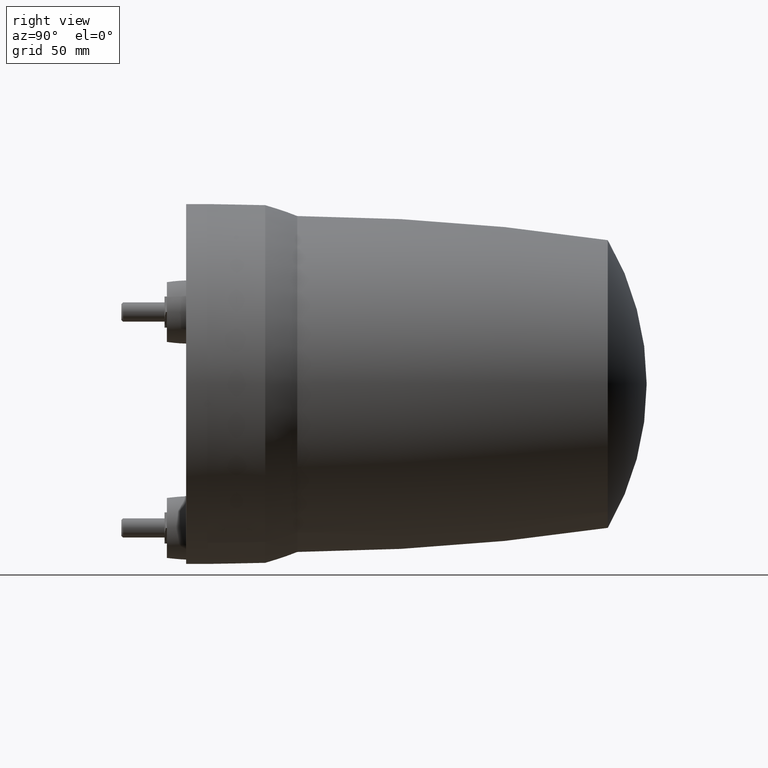
[diagram: clean part render]
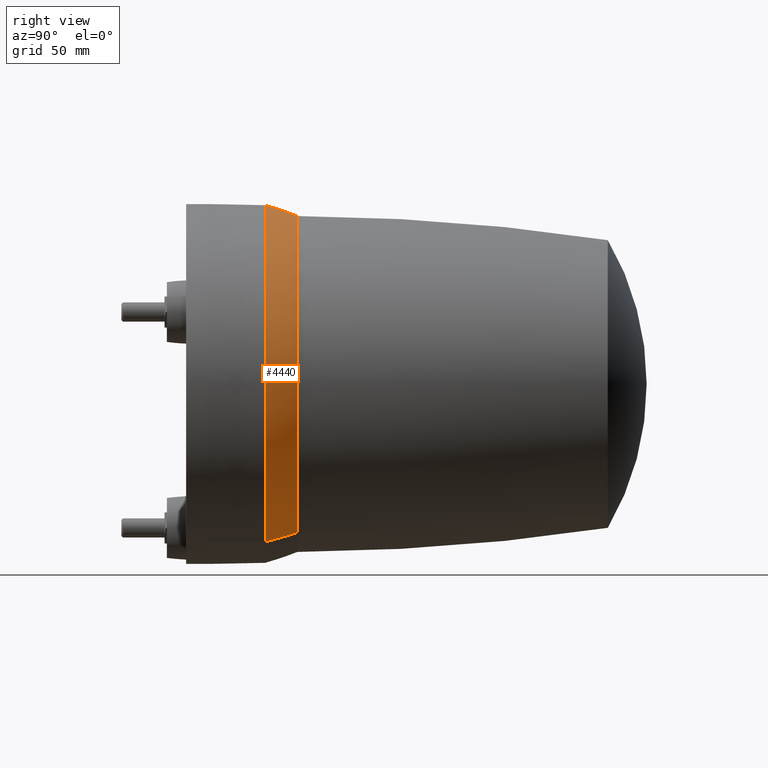
[diagram: same view with one face highlighted and labeled with its STEP entity id]
A machine part, right view. The second image highlights one B-rep face of the part: STEP entity #4440.
In plain terms, the highlighted toroidal blend (fillet) surface has major radius 212.318 mm and minor (blend) radius 300 mm.
Its self-contained STEP definition (entity closure, byte-faithful):
#26 = CARTESIAN_POINT ( 'NONE',  ( -32.95647398094602920, 55.32575010273159677, 61.94328763096225288 ) ) ;
#253 = DIRECTION ( 'NONE',  ( -4.370015698547859813E-17, 1.000000000000000000, 8.213655973132098191E-17 ) ) ;
#276 = CARTESIAN_POINT ( 'NONE',  ( 32.95647398094607183, 55.32575010273160387, -61.94328763096225998 ) ) ;
#283 = CIRCLE ( 'NONE', #1691, 300.0000000000000000 ) ;
#286 = ORIENTED_EDGE ( 'NONE', *, *, #1412, .F. ) ;
#345 = DIRECTION ( 'NONE',  ( -3.646188862319169167E-17, 1.000000000000000000, 6.853188408020449877E-17 ) ) ;
#472 = CARTESIAN_POINT ( 'NONE',  ( -99.72599162257056093, -45.68625626515981253, 187.4398270558704098 ) ) ;
#607 = AXIS2_PLACEMENT_3D ( 'NONE', #3545, #2096, #824 ) ;
#688 = ORIENTED_EDGE ( 'NONE', *, *, #3233, .T. ) ;
#824 = DIRECTION ( 'NONE',  ( 0.8828256043525186669, 0.000000000000000000, 0.4697009179250242750 ) ) ;
#834 = DIRECTION ( 'NONE',  ( 0.4697009179250239419, 0.000000000000000000, -0.8828256043525186669 ) ) ;
#948 = AXIS2_PLACEMENT_3D ( 'NONE', #2241, #1877, #3344 ) ;
#1027 = CARTESIAN_POINT ( 'NONE',  ( 1.352387018892753981E-14, -45.68625626515979832, 9.651393083216828307E-15 ) ) ;
#1068 = TOROIDAL_SURFACE ( 'NONE', #4399, -212.3180684064350032, 300.0000000000000000 ) ;
#1263 = CIRCLE ( 'NONE', #948, 300.0000000000000000 ) ;
#1412 = EDGE_CURVE ( 'NONE', #1681, #1415, #1263, .T. ) ;
#1415 = VERTEX_POINT ( 'NONE', #26 ) ;
#1671 = AXIS2_PLACEMENT_3D ( 'NONE', #3563, #253, #1762 ) ;
#1681 = VERTEX_POINT ( 'NONE', #3168 ) ;
#1691 = AXIS2_PLACEMENT_3D ( 'NONE', #472, #3020, #834 ) ;
#1762 = DIRECTION ( 'NONE',  ( -0.4697009179250243305, -9.303826183378726515E-17, 0.8828256043525185559 ) ) ;
#1790 = DIRECTION ( 'NONE',  ( -0.4697009179250238309, -7.762788453611641143E-17, 0.8828256043525187780 ) ) ;
#1877 = DIRECTION ( 'NONE',  ( -0.8828256043525187780, -4.930380657631322689E-32, -0.4697009179250238864 ) ) ;
#2002 = CIRCLE ( 'NONE', #607, 70.16480641881085489 ) ;
#2096 = DIRECTION ( 'NONE',  ( 0.000000000000000000, -1.000000000000000000, 0.000000000000000000 ) ) ;
#2241 = CARTESIAN_POINT ( 'NONE',  ( 99.72599162257056093, -45.68625626515978411, -187.4398270558704382 ) ) ;
#2435 = CIRCLE ( 'NONE', #1671, 74.58107844172275236 ) ;
#3016 = ORIENTED_EDGE ( 'NONE', *, *, #4031, .T. ) ;
#3020 = DIRECTION ( 'NONE',  ( 0.8828256043525186669, 3.697785493223491743E-32, 0.4697009179250239974 ) ) ;
#3033 = VERTEX_POINT ( 'NONE', #4108 ) ;
#3168 = CARTESIAN_POINT ( 'NONE',  ( -35.03080100391538565, 41.99999999999424460, 65.84208564857654267 ) ) ;
#3233 = EDGE_CURVE ( 'NONE', #3033, #4169, #283, .T. ) ;
#3344 = DIRECTION ( 'NONE',  ( -0.4697009179250238864, 0.000000000000000000, 0.8828256043525188890 ) ) ;
#3545 = CARTESIAN_POINT ( 'NONE',  ( 1.352387018892753981E-14, 55.32575010273160387, 9.651393083216828307E-15 ) ) ;
#3563 = CARTESIAN_POINT ( 'NONE',  ( 1.032666367920285900E-14, 41.99999999999425171, 1.566069743300744890E-14 ) ) ;
#3835 = FACE_OUTER_BOUND ( 'NONE', #4590, .T. ) ;
#4031 = EDGE_CURVE ( 'NONE', #4169, #1415, #2002, .T. ) ;
#4108 = CARTESIAN_POINT ( 'NONE',  ( 35.03080100391540697, 41.99999999999425881, -65.84208564857650003 ) ) ;
#4169 = VERTEX_POINT ( 'NONE', #276 ) ;
#4399 = AXIS2_PLACEMENT_3D ( 'NONE', #1027, #345, #1790 ) ;
#4440 = ADVANCED_FACE ( 'NONE', ( #3835 ), #1068, .T. ) ;
#4590 = EDGE_LOOP ( 'NONE', ( #4637, #688, #3016, #286 ) ) ;
#4594 = EDGE_CURVE ( 'NONE', #1681, #3033, #2435, .T. ) ;
#4637 = ORIENTED_EDGE ( 'NONE', *, *, #4594, .T. ) ;